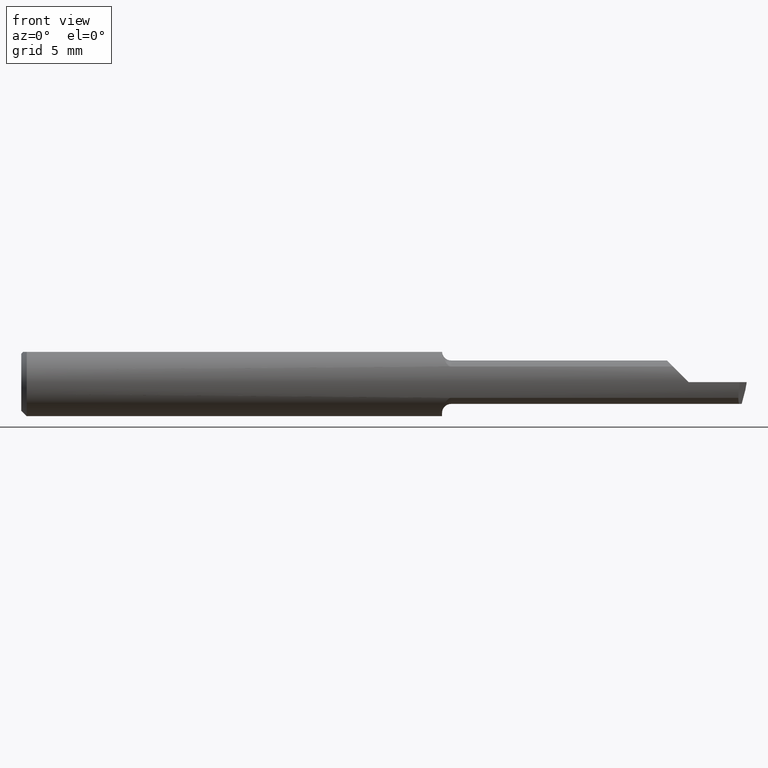
[diagram: clean part render]
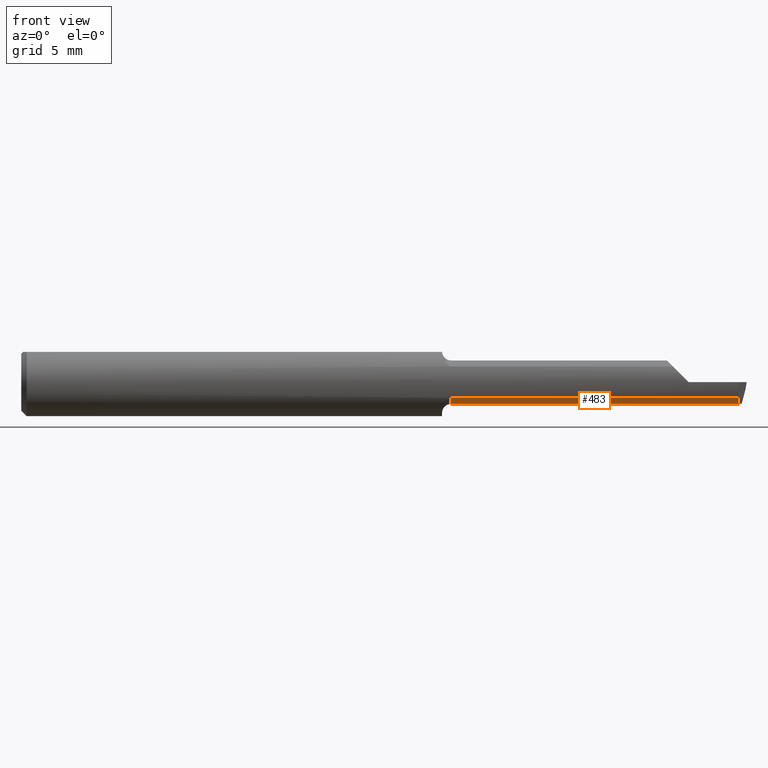
[diagram: same view with one face highlighted and labeled with its STEP entity id]
A machine part, front view. The second image highlights one B-rep face of the part: STEP entity #483.
In plain terms, the highlighted cylindrical surface (edge-blend (fillet) strip) has radius 1.5215 mm, axis along (-1, -0, -0).
Its self-contained STEP definition (entity closure, byte-faithful):
#3 = VERTEX_POINT ( 'NONE', #586 ) ;
#14 = LINE ( 'NONE', #338, #610 ) ;
#25 = DIRECTION ( 'NONE',  ( -1.000000000000000000, -0.000000000000000000, -0.000000000000000000 ) ) ;
#26 = CARTESIAN_POINT ( 'NONE',  ( 1.980500467317811930, -0.04150000000000000216, -0.05990000000000000185 ) ) ;
#33 = CARTESIAN_POINT ( 'NONE',  ( 1.520000000000000240, -0.08307469879518081246, -0.04312255117789283443 ) ) ;
#39 = CARTESIAN_POINT ( 'NONE',  ( 1.976737781047570364, -0.08307469879518081246, -0.04312255117789283443 ) ) ;
#57 = ORIENTED_EDGE ( 'NONE', *, *, #63, .T. ) ;
#63 = EDGE_CURVE ( 'NONE', #535, #3, #353, .T. ) ;
#90 =( BOUNDED_CURVE ( )  B_SPLINE_CURVE ( 3, ( #672, #658, #557, #26 ),
 .UNSPECIFIED., .F., .F. ) 
 B_SPLINE_CURVE_WITH_KNOTS ( ( 4, 4 ),
 ( 0.08075344428592796941, 0.8478785220698573655 ),
 .UNSPECIFIED. ) 
 CURVE ( )  GEOMETRIC_REPRESENTATION_ITEM ( )  RATIONAL_B_SPLINE_CURVE ( ( 1.000000000000000000, 0.9515582177473687064, 0.9515582177473687064, 1.000000000000000000 ) ) 
 REPRESENTATION_ITEM ( '' )  );
#122 = CARTESIAN_POINT ( 'NONE',  ( 1.854999999999999982, -0.04150000000000000216, -0.05990000000000000185 ) ) ;
#142 = AXIS2_PLACEMENT_3D ( 'NONE', #466, #512, #416 ) ;
#148 = EDGE_CURVE ( 'NONE', #271, #3, #256, .T. ) ;
#200 = AXIS2_PLACEMENT_3D ( 'NONE', #264, #313, #223 ) ;
#217 = CARTESIAN_POINT ( 'NONE',  ( 0.000000000000000000, -0.04149999999999999523, -0.05989999999999996022 ) ) ;
#223 = DIRECTION ( 'NONE',  ( 0.000000000000000000, 0.000000000000000000, 1.000000000000000000 ) ) ;
#256 = CIRCLE ( 'NONE', #200, 0.05989999999999991859 ) ;
#258 = CARTESIAN_POINT ( 'NONE',  ( 1.980500467317811930, -0.04150000000000000216, -0.05990000000000000185 ) ) ;
#264 = CARTESIAN_POINT ( 'NONE',  ( 1.185000000000000053, -0.04150000000000000216, 0.000000000000000000 ) ) ;
#271 = VERTEX_POINT ( 'NONE', #670 ) ;
#311 = FACE_OUTER_BOUND ( 'NONE', #538, .T. ) ;
#313 = DIRECTION ( 'NONE',  ( -1.000000000000000000, -0.000000000000000000, -0.000000000000000000 ) ) ;
#338 = CARTESIAN_POINT ( 'NONE',  ( 2.000000000000000000, -0.04150000000000000216, -0.05990000000000000185 ) ) ;
#342 = VECTOR ( 'NONE', #25, 39.37007874015748143 ) ;
#353 = LINE ( 'NONE', #33, #342 ) ;
#358 = VERTEX_POINT ( 'NONE', #122 ) ;
#361 = EDGE_CURVE ( 'NONE', #443, #358, #14, .T. ) ;
#369 = CYLINDRICAL_SURFACE ( 'NONE', #142, 0.05989999999999996022 ) ;
#416 = DIRECTION ( 'NONE',  ( 0.000000000000000000, 0.000000000000000000, 1.000000000000000000 ) ) ;
#443 = VERTEX_POINT ( 'NONE', #258 ) ;
#457 = DIRECTION ( 'NONE',  ( -1.000000000000000000, 5.691349986800549142E-18, -0.000000000000000000 ) ) ;
#466 = CARTESIAN_POINT ( 'NONE',  ( 0.000000000000000000, -0.04150000000000000216, 0.000000000000000000 ) ) ;
#483 = ADVANCED_FACE ( 'NONE', ( #311 ), #369, .T. ) ;
#484 = ORIENTED_EDGE ( 'NONE', *, *, #565, .F. ) ;
#493 = ORIENTED_EDGE ( 'NONE', *, *, #148, .F. ) ;
#512 = DIRECTION ( 'NONE',  ( -1.000000000000000000, -0.000000000000000000, -0.000000000000000000 ) ) ;
#530 = VECTOR ( 'NONE', #686, 39.37007874015748143 ) ;
#535 = VERTEX_POINT ( 'NONE', #39 ) ;
#538 = EDGE_LOOP ( 'NONE', ( #623, #668, #484, #57, #493 ) ) ;
#557 = CARTESIAN_POINT ( 'NONE',  ( 1.978293289717506065, -0.05720488466914008113, -0.05989999999999997410 ) ) ;
#565 = EDGE_CURVE ( 'NONE', #535, #443, #90, .T. ) ;
#586 = CARTESIAN_POINT ( 'NONE',  ( 1.185000000000000053, -0.08307469879518070144, -0.04312255117789289688 ) ) ;
#610 = VECTOR ( 'NONE', #457, 39.37007874015748143 ) ;
#613 = EDGE_CURVE ( 'NONE', #358, #271, #637, .T. ) ;
#623 = ORIENTED_EDGE ( 'NONE', *, *, #613, .F. ) ;
#637 = LINE ( 'NONE', #217, #530 ) ;
#658 = CARTESIAN_POINT ( 'NONE',  ( 1.976975210872349953, -0.07176861043311237587, -0.05402281578110739585 ) ) ;
#668 = ORIENTED_EDGE ( 'NONE', *, *, #361, .F. ) ;
#670 = CARTESIAN_POINT ( 'NONE',  ( 1.185000000000000053, -0.04149999999999999523, -0.05989999999999991859 ) ) ;
#672 = CARTESIAN_POINT ( 'NONE',  ( 1.976737781047570364, -0.08307469879518081246, -0.04312255117789283443 ) ) ;
#686 = DIRECTION ( 'NONE',  ( -1.000000000000000000, -0.000000000000000000, -0.000000000000000000 ) ) ;